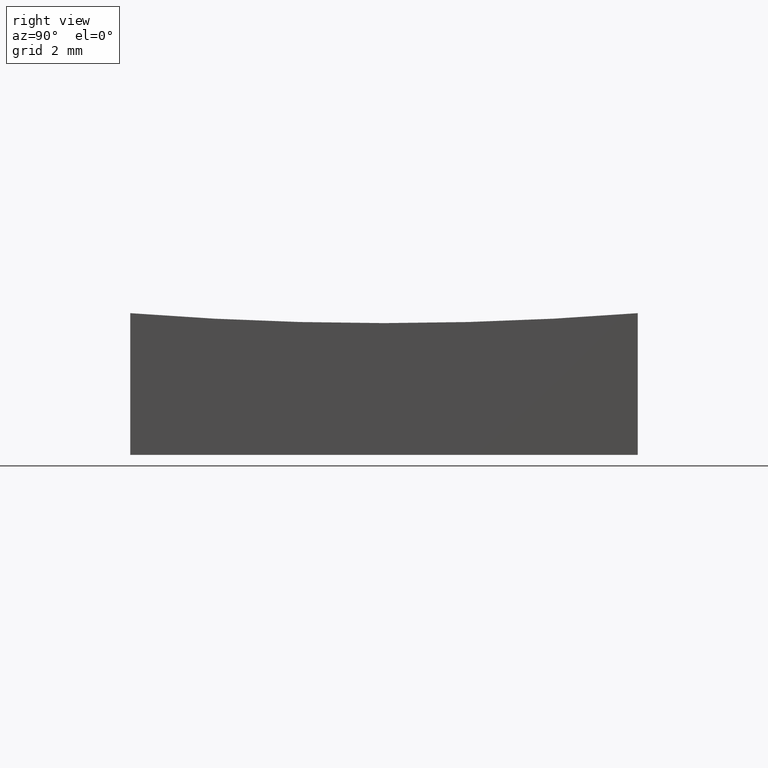
[diagram: clean part render]
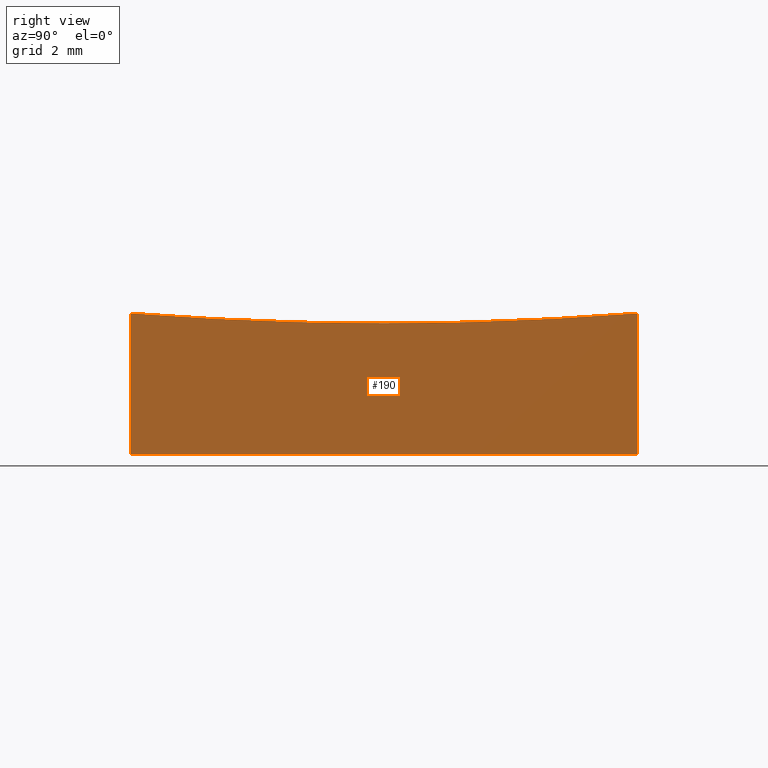
[diagram: same view with one face highlighted and labeled with its STEP entity id]
A machine part, right view. The second image highlights one B-rep face of the part: STEP entity #190.
In plain terms, the highlighted planar face has unit normal (1, 0, -0).
Its self-contained STEP definition (entity closure, byte-faithful):
#5 = ORIENTED_EDGE ( 'NONE', *, *, #129, .F. ) ;
#7 = EDGE_LOOP ( 'NONE', ( #130, #68, #218, #5, #238 ) ) ;
#8 = CARTESIAN_POINT ( 'NONE',  ( 6.250000000000000000, -6.250000000000000888, 3.489780531053754409 ) ) ;
#13 = CARTESIAN_POINT ( 'NONE',  ( 6.250000000000000000, 6.250000000000000888, 0.0000000000000000000 ) ) ;
#14 = EDGE_CURVE ( 'NONE', #23, #124, #179, .T. ) ;
#20 = PLANE ( 'NONE',  #81 ) ;
#23 = VERTEX_POINT ( 'NONE', #8 ) ;
#47 = EDGE_CURVE ( 'NONE', #124, #234, #146, .T. ) ;
#49 = CARTESIAN_POINT ( 'NONE',  ( 6.250000000000000000, 0.0000000000000000000, 83.00000000000000000 ) ) ;
#57 = EDGE_CURVE ( 'NONE', #139, #160, #241, .T. ) ;
#61 = DIRECTION ( 'NONE',  ( -0.0000000000000000000, 0.0000000000000000000, -1.000000000000000000 ) ) ;
#68 = ORIENTED_EDGE ( 'NONE', *, *, #104, .T. ) ;
#71 = AXIS2_PLACEMENT_3D ( 'NONE', #49, #128, #199 ) ;
#73 = AXIS2_PLACEMENT_3D ( 'NONE', #115, #202, #152 ) ;
#80 = CARTESIAN_POINT ( 'NONE',  ( 6.250000000000000000, 6.250000000000000888, 10.00000000000000000 ) ) ;
#81 = AXIS2_PLACEMENT_3D ( 'NONE', #80, #211, #61 ) ;
#89 = CARTESIAN_POINT ( 'NONE',  ( 6.250000000000000000, -6.250000000000000888, 0.0000000000000000000 ) ) ;
#90 = CARTESIAN_POINT ( 'NONE',  ( 6.250000000000000000, 6.250000000000000888, 10.00000000000000000 ) ) ;
#92 = LINE ( 'NONE', #90, #248 ) ;
#104 = EDGE_CURVE ( 'NONE', #23, #160, #230, .T. ) ;
#113 = DIRECTION ( 'NONE',  ( 0.0000000000000000000, -1.000000000000000000, 0.0000000000000000000 ) ) ;
#115 = CARTESIAN_POINT ( 'NONE',  ( 6.250000000000000000, 0.0000000000000000000, 83.00000000000000000 ) ) ;
#124 = VERTEX_POINT ( 'NONE', #165 ) ;
#125 = CARTESIAN_POINT ( 'NONE',  ( 6.250000000000000000, 6.250000000000000888, 3.489780531053754409 ) ) ;
#128 = DIRECTION ( 'NONE',  ( 1.000000000000000000, 0.0000000000000000000, -0.0000000000000000000 ) ) ;
#129 = EDGE_CURVE ( 'NONE', #234, #139, #92, .T. ) ;
#130 = ORIENTED_EDGE ( 'NONE', *, *, #14, .F. ) ;
#139 = VERTEX_POINT ( 'NONE', #250 ) ;
#146 = CIRCLE ( 'NONE', #73, 79.75548570474634857 ) ;
#152 = DIRECTION ( 'NONE',  ( 0.0000000000000000000, 0.0000000000000000000, -1.000000000000000000 ) ) ;
#160 = VERTEX_POINT ( 'NONE', #89 ) ;
#165 = CARTESIAN_POINT ( 'NONE',  ( 6.250000000000000000, 0.0000000000000000000, 3.244514295253658531 ) ) ;
#179 = CIRCLE ( 'NONE', #71, 79.75548570474634857 ) ;
#180 = DIRECTION ( 'NONE',  ( -0.0000000000000000000, -0.0000000000000000000, -1.000000000000000000 ) ) ;
#190 = ADVANCED_FACE ( 'NONE', ( #212 ), #20, .T. ) ;
#199 = DIRECTION ( 'NONE',  ( 0.0000000000000000000, 0.0000000000000000000, -1.000000000000000000 ) ) ;
#202 = DIRECTION ( 'NONE',  ( 1.000000000000000000, 0.0000000000000000000, -0.0000000000000000000 ) ) ;
#211 = DIRECTION ( 'NONE',  ( 1.000000000000000000, 0.0000000000000000000, -0.0000000000000000000 ) ) ;
#212 = FACE_OUTER_BOUND ( 'NONE', #7, .T. ) ;
#213 = VECTOR ( 'NONE', #113, 1000.000000000000000 ) ;
#218 = ORIENTED_EDGE ( 'NONE', *, *, #57, .F. ) ;
#224 = VECTOR ( 'NONE', #180, 1000.000000000000000 ) ;
#230 = LINE ( 'NONE', #249, #224 ) ;
#234 = VERTEX_POINT ( 'NONE', #125 ) ;
#238 = ORIENTED_EDGE ( 'NONE', *, *, #47, .F. ) ;
#241 = LINE ( 'NONE', #13, #213 ) ;
#243 = DIRECTION ( 'NONE',  ( -0.0000000000000000000, -0.0000000000000000000, -1.000000000000000000 ) ) ;
#248 = VECTOR ( 'NONE', #243, 1000.000000000000000 ) ;
#249 = CARTESIAN_POINT ( 'NONE',  ( 6.250000000000000000, -6.250000000000000888, 10.00000000000000000 ) ) ;
#250 = CARTESIAN_POINT ( 'NONE',  ( 6.250000000000000000, 6.250000000000000888, 0.0000000000000000000 ) ) ;